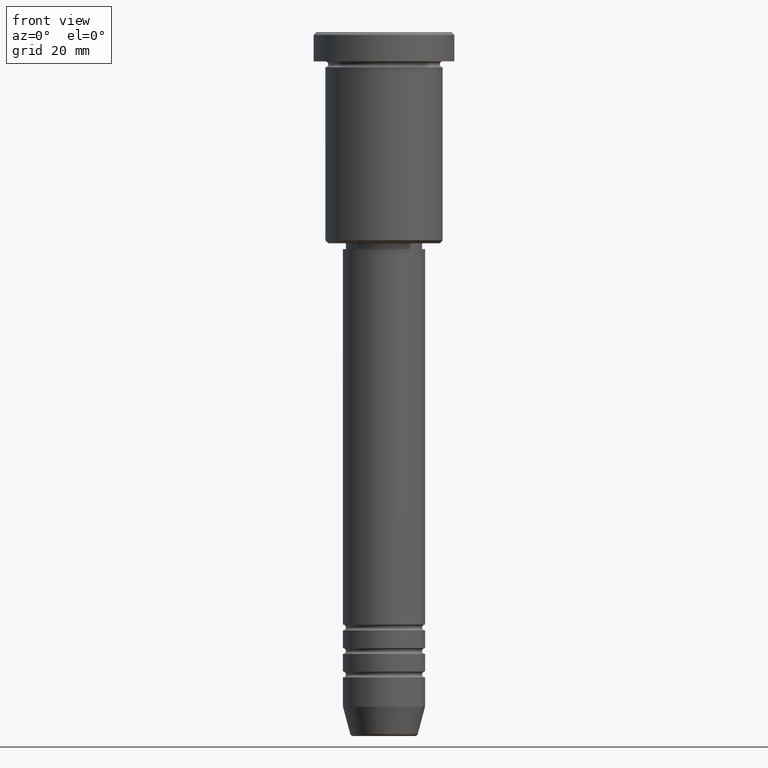
[diagram: clean part render]
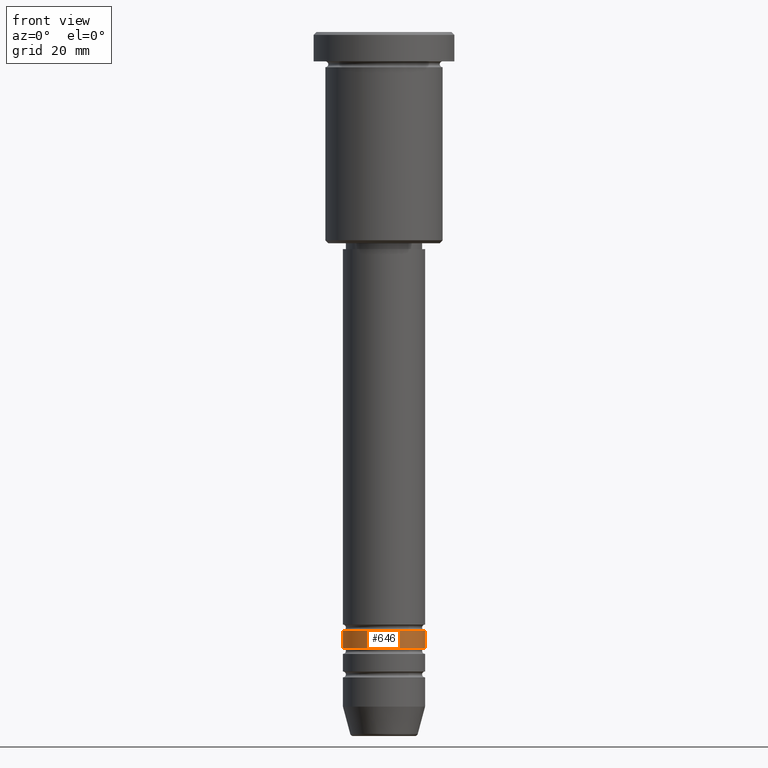
[diagram: same view with one face highlighted and labeled with its STEP entity id]
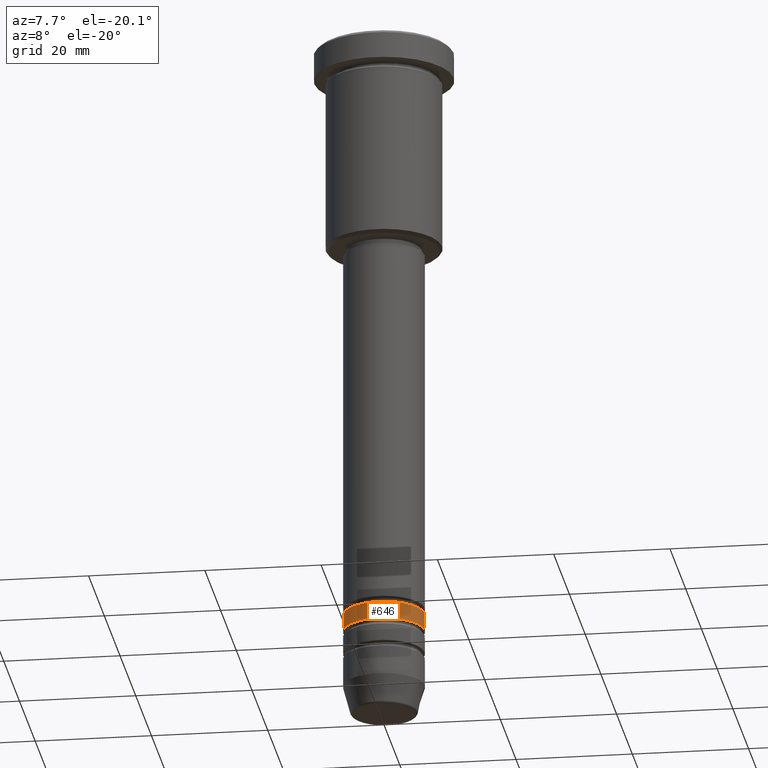
[diagram: same view with one face highlighted and labeled with its STEP entity id]
A machine part, front view. The second image highlights one B-rep face of the part: STEP entity #646.
A second angle (auxiliary view) of the same face is appended — the face is thin or edge-on in the first view.
In plain terms, the highlighted cylindrical surface (partial cylindrical patch) has radius 7 mm, axis along (-0, -0, 1).
Its self-contained STEP definition (entity closure, byte-faithful):
#1 = VERTEX_POINT ( 'NONE', #999 ) ;
#8 = CARTESIAN_POINT ( 'NONE',  ( -7.000000000000002665, 8.572527594031475162E-16, -104.9999999999999858 ) ) ;
#48 = ORIENTED_EDGE ( 'NONE', *, *, #595, .F. ) ;
#55 = CARTESIAN_POINT ( 'NONE',  ( 0.000000000000000000, 0.000000000000000000, -101.9999999999999858 ) ) ;
#78 = DIRECTION ( 'NONE',  ( -0.000000000000000000, -0.000000000000000000, 1.000000000000000000 ) ) ;
#91 = LINE ( 'NONE', #635, #1056 ) ;
#149 = ORIENTED_EDGE ( 'NONE', *, *, #857, .T. ) ;
#166 = EDGE_CURVE ( 'NONE', #370, #728, #663, .T. ) ;
#181 = CIRCLE ( 'NONE', #544, 7.000000000000002665 ) ;
#207 = CARTESIAN_POINT ( 'NONE',  ( 7.000000000000000888, 0.000000000000000000, 0.000000000000000000 ) ) ;
#234 = DIRECTION ( 'NONE',  ( -0.000000000000000000, -0.000000000000000000, 1.000000000000000000 ) ) ;
#247 = DIRECTION ( 'NONE',  ( 1.000000000000000000, 0.000000000000000000, 0.000000000000000000 ) ) ;
#370 = VERTEX_POINT ( 'NONE', #1091 ) ;
#430 = EDGE_CURVE ( 'NONE', #1159, #1, #91, .T. ) ;
#518 = AXIS2_PLACEMENT_3D ( 'NONE', #55, #621, #519 ) ;
#519 = DIRECTION ( 'NONE',  ( 1.000000000000000000, 0.000000000000000000, 0.000000000000000000 ) ) ;
#539 = CARTESIAN_POINT ( 'NONE',  ( 0.000000000000000000, 0.000000000000000000, -104.9999999999999858 ) ) ;
#544 = AXIS2_PLACEMENT_3D ( 'NONE', #539, #78, #727 ) ;
#595 = EDGE_CURVE ( 'NONE', #1, #728, #643, .T. ) ;
#621 = DIRECTION ( 'NONE',  ( -0.000000000000000000, -0.000000000000000000, 1.000000000000000000 ) ) ;
#635 = CARTESIAN_POINT ( 'NONE',  ( -7.000000000000000888, 8.572527594031474176E-16, 0.000000000000000000 ) ) ;
#643 = CIRCLE ( 'NONE', #518, 7.000000000000000000 ) ;
#646 = ADVANCED_FACE ( 'NONE', ( #1139 ), #787, .T. ) ;
#663 = LINE ( 'NONE', #207, #833 ) ;
#716 = ORIENTED_EDGE ( 'NONE', *, *, #166, .T. ) ;
#727 = DIRECTION ( 'NONE',  ( 1.000000000000000000, 0.000000000000000000, 0.000000000000000000 ) ) ;
#728 = VERTEX_POINT ( 'NONE', #1102 ) ;
#787 = CYLINDRICAL_SURFACE ( 'NONE', #924, 7.000000000000000888 ) ;
#798 = EDGE_LOOP ( 'NONE', ( #989, #149, #716, #48 ) ) ;
#833 = VECTOR ( 'NONE', #234, 1000.000000000000000 ) ;
#857 = EDGE_CURVE ( 'NONE', #1159, #370, #181, .T. ) ;
#924 = AXIS2_PLACEMENT_3D ( 'NONE', #1142, #1146, #247 ) ;
#989 = ORIENTED_EDGE ( 'NONE', *, *, #430, .F. ) ;
#997 = DIRECTION ( 'NONE',  ( -0.000000000000000000, -0.000000000000000000, 1.000000000000000000 ) ) ;
#999 = CARTESIAN_POINT ( 'NONE',  ( -7.000000000000000000, 8.572527594031473190E-16, -101.9999999999999858 ) ) ;
#1056 = VECTOR ( 'NONE', #997, 1000.000000000000000 ) ;
#1091 = CARTESIAN_POINT ( 'NONE',  ( 7.000000000000002665, 0.000000000000000000, -104.9999999999999858 ) ) ;
#1102 = CARTESIAN_POINT ( 'NONE',  ( 7.000000000000000000, 0.000000000000000000, -101.9999999999999858 ) ) ;
#1139 = FACE_OUTER_BOUND ( 'NONE', #798, .T. ) ;
#1142 = CARTESIAN_POINT ( 'NONE',  ( 0.000000000000000000, 0.000000000000000000, 0.000000000000000000 ) ) ;
#1146 = DIRECTION ( 'NONE',  ( -0.000000000000000000, -0.000000000000000000, 1.000000000000000000 ) ) ;
#1159 = VERTEX_POINT ( 'NONE', #8 ) ;